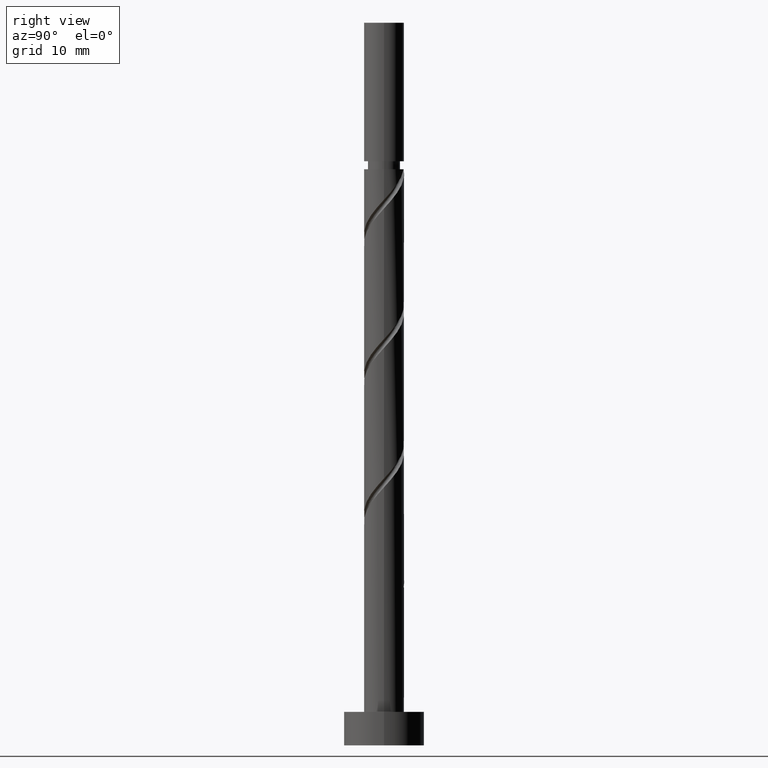
[diagram: clean part render]
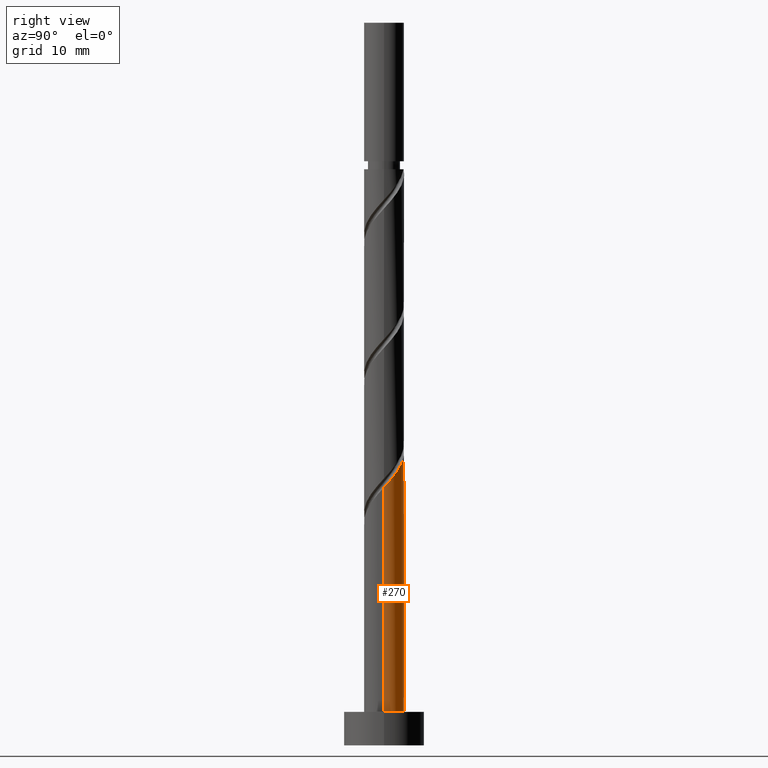
[diagram: same view with one face highlighted and labeled with its STEP entity id]
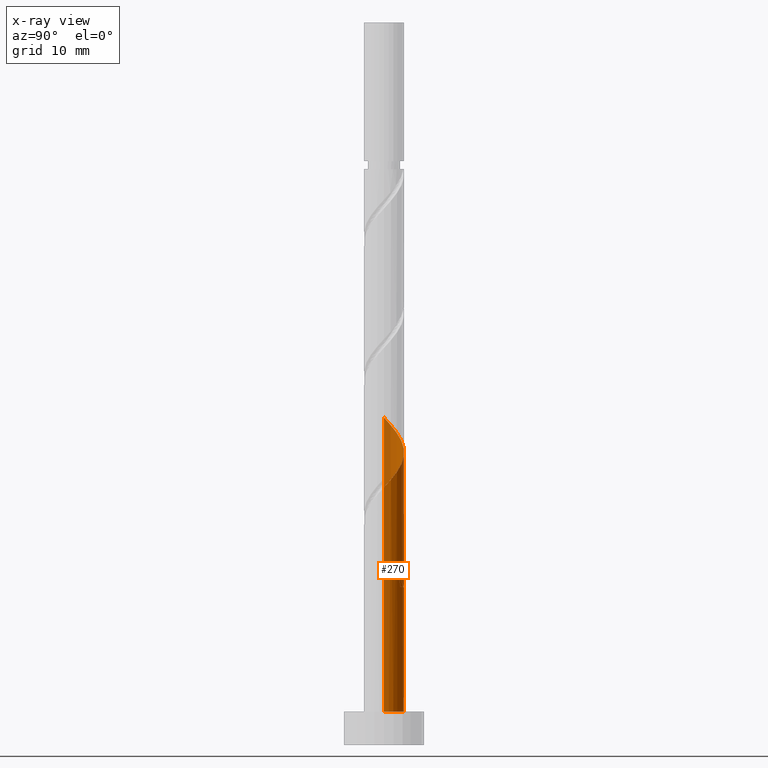
[diagram: x-ray of the same camera — body ghosted, the highlighted face saturated]
A machine part, right view. The second image highlights one B-rep face of the part: STEP entity #270.
The next image is the same camera in x-ray: the body ghosted, the highlighted face saturated — about 0% of this face is hidden behind the body in this view.
In plain terms, the highlighted cylindrical surface (edge-blend (fillet) strip) has radius 3 mm, axis along (-0, -0, -1).
Its self-contained STEP definition (entity closure, byte-faithful):
#1 = CIRCLE ( 'NONE', #208, 3.000000000000000444 ) ;
#19 = CARTESIAN_POINT ( 'NONE',  ( 0.5969924622639710687, 2.939999999999999947, 23.59792561489060247 ) ) ;
#36 = ORIENTED_EDGE ( 'NONE', *, *, #241, .T. ) ;
#40 = LINE ( 'NONE', #859, #1239 ) ;
#46 = CARTESIAN_POINT ( 'NONE',  ( -2.377805000122526380, 1.889924352937059293, 27.24375894822394173 ) ) ;
#73 = CARTESIAN_POINT ( 'NONE',  ( 3.000000000000004441, 5.547448029786144744E-16, 38.55812317342034135 ) ) ;
#81 = CARTESIAN_POINT ( 'NONE',  ( 3.000000000000003997, 0.3015113445777629630, 38.89242774882819020 ) ) ;
#90 = DIRECTION ( 'NONE',  ( -1.000000000000000000, 0.000000000000000000, 0.000000000000000000 ) ) ;
#96 = CARTESIAN_POINT ( 'NONE',  ( 0.000000000000000000, 0.000000000000000000, 108.0000000000000000 ) ) ;
#106 = CARTESIAN_POINT ( 'NONE',  ( -2.926619631508484254, 0.8128149918040514788, 27.24375894822393818 ) ) ;
#129 = DIRECTION ( 'NONE',  ( -0.000000000000000000, -0.000000000000000000, -1.000000000000000000 ) ) ;
#136 = CARTESIAN_POINT ( 'NONE',  ( 0.5969924622639710687, 2.939999999999999947, 23.59792561489060247 ) ) ;
#148 = ORIENTED_EDGE ( 'NONE', *, *, #290, .T. ) ;
#156 = CARTESIAN_POINT ( 'NONE',  ( -1.677408196705099996, 2.532207025513276477, 26.20209228155726677 ) ) ;
#174 = CIRCLE ( 'NONE', #1366, 3.000000000000000444 ) ;
#175 = CARTESIAN_POINT ( 'NONE',  ( -2.926619631508484254, 0.8128149918040514788, 48.07709228155727033 ) ) ;
#185 = CARTESIAN_POINT ( 'NONE',  ( -3.000000000000005329, -9.895447836915827092E-16, 48.97478984008700564 ) ) ;
#208 = AXIS2_PLACEMENT_3D ( 'NONE', #369, #868, #356 ) ;
#214 = CARTESIAN_POINT ( 'NONE',  ( -2.211065689225171216, 2.027606598413816741, 25.68125894822392752 ) ) ;
#222 = CARTESIAN_POINT ( 'NONE',  ( 3.000000000000000444, 3.673940397442060361E-16, 108.0000000000000000 ) ) ;
#227 = EDGE_CURVE ( 'NONE', #268, #1149, #1069, .T. ) ;
#230 = CARTESIAN_POINT ( 'NONE',  ( -2.939999999999999947, 0.5969924622639705136, 28.80625894822394173 ) ) ;
#241 = EDGE_CURVE ( 'NONE', #705, #969, #696, .T. ) ;
#251 = CARTESIAN_POINT ( 'NONE',  ( 3.000000000000004441, 5.547448029786144744E-16, 38.55812317342034135 ) ) ;
#255 = VECTOR ( 'NONE', #1171, 1000.000000000000000 ) ;
#268 = VERTEX_POINT ( 'NONE', #819 ) ;
#270 = ADVANCED_FACE ( 'NONE', ( #833 ), #1305, .T. ) ;
#290 = EDGE_CURVE ( 'NONE', #268, #1541, #174, .T. ) ;
#303 = CARTESIAN_POINT ( 'NONE',  ( 0.8128149918040520339, 2.926619631508484254, 42.86875894822394173 ) ) ;
#310 = CARTESIAN_POINT ( 'NONE',  ( 1.677408196705103327, 2.532207025513279586, 41.82709228155727033 ) ) ;
#311 = CARTESIAN_POINT ( 'NONE',  ( -0.5969924622639700695, 2.940000000000004832, 23.59792561489060247 ) ) ;
#326 = EDGE_LOOP ( 'NONE', ( #880, #36, #1498, #1204, #1271, #148, #756, #1352 ) ) ;
#356 = DIRECTION ( 'NONE',  ( 1.000000000000000000, 0.000000000000000000, 0.000000000000000000 ) ) ;
#369 = CARTESIAN_POINT ( 'NONE',  ( 0.000000000000000000, 0.000000000000000000, 5.000000000000000000 ) ) ;
#385 = VERTEX_POINT ( 'NONE', #1450 ) ;
#418 = CARTESIAN_POINT ( 'NONE',  ( -3.000000000000005329, 0.1709212123393016036, 48.78527875087971921 ) ) ;
#424 = CARTESIAN_POINT ( 'NONE',  ( -2.532207025513280474, 1.677408196705102439, 47.03542561489059892 ) ) ;
#463 = CARTESIAN_POINT ( 'NONE',  ( 0.000000000000000000, 0.000000000000000000, 23.59792561489060247 ) ) ;
#473 = CARTESIAN_POINT ( 'NONE',  ( -3.000000000000000444, 1.784179231201501693E-15, 29.47106138969419931 ) ) ;
#502 = EDGE_CURVE ( 'NONE', #969, #750, #1, .T. ) ;
#536 = CARTESIAN_POINT ( 'NONE',  ( -0.8128149918040494804, 2.926619631508480257, 25.16042561489059892 ) ) ;
#549 = CARTESIAN_POINT ( 'NONE',  ( 2.027606598413817185, 2.211065689225170328, 41.30625894822392752 ) ) ;
#574 = CARTESIAN_POINT ( 'NONE',  ( -0.1313422077098325147, 3.034554317013650859, 43.91042561489060603 ) ) ;
#591 = CARTESIAN_POINT ( 'NONE',  ( -2.980586974261068001, 0.3407363920471089824, 27.76459228155726322 ) ) ;
#624 = DIRECTION ( 'NONE',  ( -0.000000000000000000, -0.000000000000000000, -1.000000000000000000 ) ) ;
#667 = CARTESIAN_POINT ( 'NONE',  ( -1.062642716818108291, 2.845445682986359248, 44.95209228155727033 ) ) ;
#668 = VERTEX_POINT ( 'NONE', #1534 ) ;
#672 = CARTESIAN_POINT ( 'NONE',  ( 1.245111594254577625, 2.729413328510882586, 42.34792561489059182 ) ) ;
#695 = CARTESIAN_POINT ( 'NONE',  ( 2.940000000000004388, 0.5969924622639700695, 39.22292561489059892 ) ) ;
#696 = LINE ( 'NONE', #222, #255 ) ;
#705 = VERTEX_POINT ( 'NONE', #251 ) ;
#750 = VERTEX_POINT ( 'NONE', #836 ) ;
#756 = ORIENTED_EDGE ( 'NONE', *, *, #831, .F. ) ;
#769 = CARTESIAN_POINT ( 'NONE',  ( -2.611625341554440372, 1.476283534877583570, 27.76459228155726322 ) ) ;
#783 = VECTOR ( 'NONE', #129, 1000.000000000000000 ) ;
#785 = CARTESIAN_POINT ( 'NONE',  ( -1.476283534877585124, 2.611625341554444812, 45.47292561489059892 ) ) ;
#794 = CARTESIAN_POINT ( 'NONE',  ( -1.062642716818108291, 2.845445682986359248, 24.11875894822394173 ) ) ;
#803 = CARTESIAN_POINT ( 'NONE',  ( -1.889924352937061514, 2.377805000122529933, 25.16042561489060603 ) ) ;
#812 = CARTESIAN_POINT ( 'NONE',  ( -2.729413328510882586, 1.245111594254576737, 47.55625894822390620 ) ) ;
#813 = CARTESIAN_POINT ( 'NONE',  ( -2.532207025513280474, 1.677408196705102439, 26.20209228155726322 ) ) ;
#818 = LINE ( 'NONE', #842, #783 ) ;
#819 = CARTESIAN_POINT ( 'NONE',  ( -0.5969924622639700695, 2.940000000000004832, 23.59792561489060247 ) ) ;
#831 = EDGE_CURVE ( 'NONE', #385, #1541, #1279, .T. ) ;
#833 = FACE_OUTER_BOUND ( 'NONE', #326, .T. ) ;
#836 = CARTESIAN_POINT ( 'NONE',  ( -3.000000000000000444, 0.000000000000000000, 5.000000000000000000 ) ) ;
#842 = CARTESIAN_POINT ( 'NONE',  ( -3.000000000000000444, 0.000000000000000000, 108.0000000000000000 ) ) ;
#859 = CARTESIAN_POINT ( 'NONE',  ( -3.000000000000000444, 0.000000000000000000, 108.0000000000000000 ) ) ;
#868 = DIRECTION ( 'NONE',  ( 0.000000000000000000, 0.000000000000000000, 1.000000000000000000 ) ) ;
#880 = ORIENTED_EDGE ( 'NONE', *, *, #1039, .F. ) ;
#918 = CARTESIAN_POINT ( 'NONE',  ( -3.000000000000005329, -9.895447836915827092E-16, 28.14145650675367349 ) ) ;
#932 = CARTESIAN_POINT ( 'NONE',  ( 0.3407363920471097041, 2.980586974261068001, 43.38959228155726322 ) ) ;
#941 = CARTESIAN_POINT ( 'NONE',  ( -2.211065689225171216, 2.027606598413816741, 46.51459228155726322 ) ) ;
#950 = DIRECTION ( 'NONE',  ( 0.000000000000000000, -0.000000000000000000, -1.000000000000000000 ) ) ;
#969 = VERTEX_POINT ( 'NONE', #1496 ) ;
#1012 = CARTESIAN_POINT ( 'NONE',  ( -1.245111594254575182, 2.729413328510878589, 25.68125894822393462 ) ) ;
#1039 = EDGE_CURVE ( 'NONE', #705, #668, #1447, .T. ) ;
#1065 = DIRECTION ( 'NONE',  ( -1.000000000000000000, 0.000000000000000000, 0.000000000000000000 ) ) ;
#1069 =( BOUNDED_CURVE ( )  B_SPLINE_CURVE ( 2, ( #311, #794, #1312, #803, #214, #813, #1296, #106, #591, #1319, #1187 ),
 .UNSPECIFIED., .F., .T. ) 
 B_SPLINE_CURVE_WITH_KNOTS ( ( 3, 2, 2, 2, 2, 3 ),
 ( 0.000000000000000000, 0.01249999999999995559, 0.02500000000000002220, 0.03749999999999997780, 0.05000000000000004441, 0.05453220231385523531 ),
 .UNSPECIFIED. ) 
 CURVE ( )  GEOMETRIC_REPRESENTATION_ITEM ( )  RATIONAL_B_SPLINE_CURVE ( ( 0.9090909090909131685, 0.8978984914501292325, 0.9090909090909131685, 0.8978984914501292325, 0.9090909090909131685, 0.8978984914501292325, 0.9090909090909131685, 0.8978984914501292325, 0.9090909090909131685, 0.9050328050005775893, 0.9039174447099354026 ) ) 
 REPRESENTATION_ITEM ( '' )  );
#1072 = DIRECTION ( 'NONE',  ( -0.000000000000000000, -0.000000000000000000, -1.000000000000000000 ) ) ;
#1095 = CARTESIAN_POINT ( 'NONE',  ( -3.000000000000000000, 0.3015113445777638512, 29.13675681428636111 ) ) ;
#1140 = AXIS2_PLACEMENT_3D ( 'NONE', #96, #1072, #90 ) ;
#1149 = VERTEX_POINT ( 'NONE', #918 ) ;
#1170 = CARTESIAN_POINT ( 'NONE',  ( 2.611625341554444812, 1.476283534877584458, 40.26459228155727033 ) ) ;
#1171 = DIRECTION ( 'NONE',  ( -0.000000000000000000, -0.000000000000000000, -1.000000000000000000 ) ) ;
#1187 = CARTESIAN_POINT ( 'NONE',  ( -3.000000000000005329, -9.895447836915827092E-16, 28.14145650675367349 ) ) ;
#1188 = CARTESIAN_POINT ( 'NONE',  ( -2.845445682986354363, 1.062642716818107402, 28.28542561489060958 ) ) ;
#1204 = ORIENTED_EDGE ( 'NONE', *, *, #1566, .F. ) ;
#1234 = CARTESIAN_POINT ( 'NONE',  ( -0.3407363920471078722, 2.980586974261063116, 24.63959228155727033 ) ) ;
#1239 = VECTOR ( 'NONE', #624, 1000.000000000000000 ) ;
#1271 = ORIENTED_EDGE ( 'NONE', *, *, #227, .F. ) ;
#1279 =( BOUNDED_CURVE ( )  B_SPLINE_CURVE ( 2, ( #473, #1095, #230, #1188, #769, #46, #1350, #156, #1012, #536, #1234, #1477, #19 ),
 .UNSPECIFIED., .F., .T. ) 
 B_SPLINE_CURVE_WITH_KNOTS ( ( 3, 2, 2, 2, 2, 2, 3 ),
 ( 0.9295322023138552492, 0.9375000000000000000, 0.9499999999999999556, 0.9625000000000000222, 0.9749999999999999778, 0.9875000000000000444, 1.000000000000000000 ),
 .UNSPECIFIED. ) 
 CURVE ( )  GEOMETRIC_REPRESENTATION_ITEM ( )  RATIONAL_B_SPLINE_CURVE ( ( 0.9039174447099294074, 0.9019565955404588165, 0.9090909090909071733, 0.8978984914501233483, 0.9090909090909071733, 0.8978984914501233483, 0.9090909090909071733, 0.8978984914501233483, 0.9090909090909071733, 0.8978984914501233483, 0.9090909090909071733, 0.8978984914501233483, 0.9090909090909071733 ) ) 
 REPRESENTATION_ITEM ( '' )  );
#1284 = CARTESIAN_POINT ( 'NONE',  ( -2.980586974261068001, 0.3407363920471089824, 48.59792561489059892 ) ) ;
#1296 = CARTESIAN_POINT ( 'NONE',  ( -2.729413328510882586, 1.245111594254576737, 26.72292561489060247 ) ) ;
#1305 = CYLINDRICAL_SURFACE ( 'NONE', #1140, 3.000000000000000444 ) ;
#1312 = CARTESIAN_POINT ( 'NONE',  ( -1.476283534877585124, 2.611625341554444812, 24.63959228155727033 ) ) ;
#1319 = CARTESIAN_POINT ( 'NONE',  ( -3.000000000000005329, 0.1709212123393000493, 27.95194541754639062 ) ) ;
#1323 = EDGE_CURVE ( 'NONE', #668, #385, #818, .T. ) ;
#1350 = CARTESIAN_POINT ( 'NONE',  ( -2.027606598413813632, 2.211065689225168551, 26.72292561489060958 ) ) ;
#1352 = ORIENTED_EDGE ( 'NONE', *, *, #1323, .F. ) ;
#1366 = AXIS2_PLACEMENT_3D ( 'NONE', #463, #950, #1065 ) ;
#1391 = CARTESIAN_POINT ( 'NONE',  ( 2.845445682986360136, 1.062642716818107624, 39.74375894822394173 ) ) ;
#1406 = CARTESIAN_POINT ( 'NONE',  ( -0.5969924622639700695, 2.940000000000004388, 44.43125894822393462 ) ) ;
#1447 =( BOUNDED_CURVE ( )  B_SPLINE_CURVE ( 2, ( #73, #81, #695, #1391, #1170, #1517, #549, #310, #672, #303, #932, #574, #1406, #667, #785, #1537, #941, #424, #812, #175, #1284, #418, #185 ),
 .UNSPECIFIED., .F., .T. ) 
 B_SPLINE_CURVE_WITH_KNOTS ( ( 3, 2, 2, 2, 2, 2, 2, 2, 2, 2, 2, 3 ),
 ( 0.1795322023138552492, 0.1875000000000000000, 0.1999999999999999556, 0.2125000000000000222, 0.2249999999999999778, 0.2375000000000000444, 0.2500000000000000000, 0.2624999999999999556, 0.2750000000000000222, 0.2874999999999999778, 0.3000000000000000444, 0.3045322023138551937 ),
 .UNSPECIFIED. ) 
 CURVE ( )  GEOMETRIC_REPRESENTATION_ITEM ( )  RATIONAL_B_SPLINE_CURVE ( ( 0.9039174447099354026, 0.9019565955404647006, 0.9090909090909131685, 0.8978984914501292325, 0.9090909090909131685, 0.8978984914501292325, 0.9090909090909131685, 0.8978984914501292325, 0.9090909090909131685, 0.8978984914501292325, 0.9090909090909131685, 0.8978984914501292325, 0.9090909090909131685, 0.8978984914501292325, 0.9090909090909131685, 0.8978984914501292325, 0.9090909090909131685, 0.8978984914501292325, 0.9090909090909131685, 0.8978984914501292325, 0.9090909090909131685, 0.9050328050005775893, 0.9039174447099354026 ) ) 
 REPRESENTATION_ITEM ( '' )  );
#1450 = CARTESIAN_POINT ( 'NONE',  ( -3.000000000000000444, 1.784179231201501693E-15, 29.47106138969419931 ) ) ;
#1477 = CARTESIAN_POINT ( 'NONE',  ( 0.1313422077098336527, 3.034554317013645974, 24.11875894822393462 ) ) ;
#1496 = CARTESIAN_POINT ( 'NONE',  ( 3.000000000000000444, 3.673940397442060361E-16, 5.000000000000000000 ) ) ;
#1498 = ORIENTED_EDGE ( 'NONE', *, *, #502, .T. ) ;
#1517 = CARTESIAN_POINT ( 'NONE',  ( 2.377805000122530377, 1.889924352937061514, 40.78542561489061313 ) ) ;
#1534 = CARTESIAN_POINT ( 'NONE',  ( -3.000000000000005329, -9.895447836915827092E-16, 48.97478984008700564 ) ) ;
#1537 = CARTESIAN_POINT ( 'NONE',  ( -1.889924352937061514, 2.377805000122529933, 45.99375894822393462 ) ) ;
#1541 = VERTEX_POINT ( 'NONE', #136 ) ;
#1566 = EDGE_CURVE ( 'NONE', #1149, #750, #40, .T. ) ;